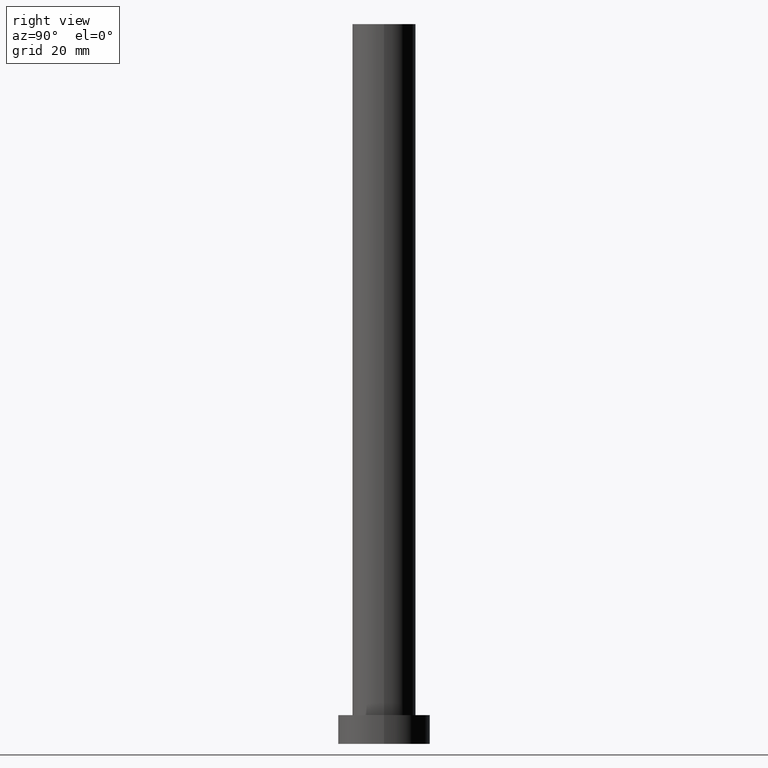
[diagram: clean part render]
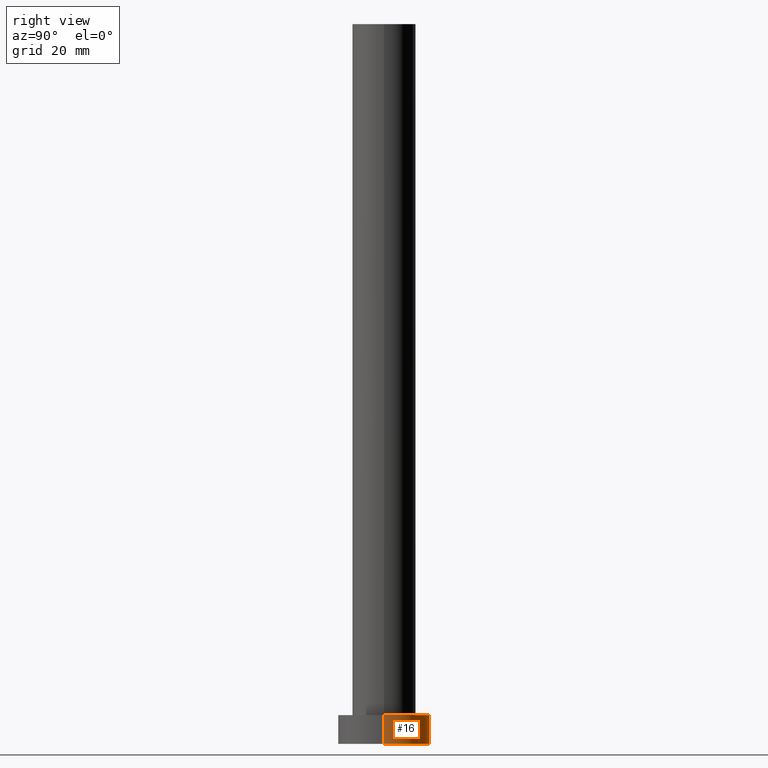
[diagram: same view with one face highlighted and labeled with its STEP entity id]
A machine part, right view. The second image highlights one B-rep face of the part: STEP entity #16.
In plain terms, the highlighted cylindrical surface (partial cylindrical patch) has radius 8 mm, axis along (-0, -0, -1).
Its self-contained STEP definition (entity closure, byte-faithful):
#3 = EDGE_CURVE ( 'NONE', #204, #247, #64, .T. ) ;
#9 = CIRCLE ( 'NONE', #55, 8.000000000000000000 ) ;
#12 = CARTESIAN_POINT ( 'NONE',  ( -8.000000000000000000, 0.000000000000000000, 0.000000000000000000 ) ) ;
#13 = VERTEX_POINT ( 'NONE', #12 ) ;
#16 = ADVANCED_FACE ( 'NONE', ( #91 ), #52, .T. ) ;
#19 = EDGE_LOOP ( 'NONE', ( #187, #206, #189, #107 ) ) ;
#32 = CARTESIAN_POINT ( 'NONE',  ( 0.000000000000000000, 0.000000000000000000, 5.000000000000000000 ) ) ;
#42 = CARTESIAN_POINT ( 'NONE',  ( 8.000000000000000000, 9.797174393178825657E-16, 5.000000000000000000 ) ) ;
#48 = CARTESIAN_POINT ( 'NONE',  ( -8.000000000000000000, 0.000000000000000000, 5.000000000000000000 ) ) ;
#51 = DIRECTION ( 'NONE',  ( -0.000000000000000000, -0.000000000000000000, -1.000000000000000000 ) ) ;
#52 = CYLINDRICAL_SURFACE ( 'NONE', #168, 8.000000000000000000 ) ;
#55 = AXIS2_PLACEMENT_3D ( 'NONE', #130, #254, #69 ) ;
#64 = LINE ( 'NONE', #126, #210 ) ;
#65 = EDGE_CURVE ( 'NONE', #247, #13, #9, .T. ) ;
#68 = CARTESIAN_POINT ( 'NONE',  ( 0.000000000000000000, 0.000000000000000000, 5.000000000000000000 ) ) ;
#69 = DIRECTION ( 'NONE',  ( 1.000000000000000000, 0.000000000000000000, 0.000000000000000000 ) ) ;
#72 = CARTESIAN_POINT ( 'NONE',  ( 8.000000000000000000, 9.797174393178825657E-16, 0.000000000000000000 ) ) ;
#80 = EDGE_CURVE ( 'NONE', #204, #230, #203, .T. ) ;
#91 = FACE_OUTER_BOUND ( 'NONE', #19, .T. ) ;
#107 = ORIENTED_EDGE ( 'NONE', *, *, #224, .F. ) ;
#113 = DIRECTION ( 'NONE',  ( -1.000000000000000000, 0.000000000000000000, 0.000000000000000000 ) ) ;
#124 = AXIS2_PLACEMENT_3D ( 'NONE', #32, #150, #212 ) ;
#126 = CARTESIAN_POINT ( 'NONE',  ( 8.000000000000000000, 9.797174393178825657E-16, 5.000000000000000000 ) ) ;
#130 = CARTESIAN_POINT ( 'NONE',  ( 0.000000000000000000, 0.000000000000000000, 0.000000000000000000 ) ) ;
#150 = DIRECTION ( 'NONE',  ( 0.000000000000000000, 0.000000000000000000, 1.000000000000000000 ) ) ;
#166 = DIRECTION ( 'NONE',  ( -0.000000000000000000, -0.000000000000000000, -1.000000000000000000 ) ) ;
#168 = AXIS2_PLACEMENT_3D ( 'NONE', #68, #51, #113 ) ;
#184 = VECTOR ( 'NONE', #166, 1000.000000000000000 ) ;
#186 = CARTESIAN_POINT ( 'NONE',  ( -8.000000000000000000, 0.000000000000000000, 5.000000000000000000 ) ) ;
#187 = ORIENTED_EDGE ( 'NONE', *, *, #80, .F. ) ;
#189 = ORIENTED_EDGE ( 'NONE', *, *, #65, .T. ) ;
#203 = CIRCLE ( 'NONE', #124, 8.000000000000000000 ) ;
#204 = VERTEX_POINT ( 'NONE', #42 ) ;
#206 = ORIENTED_EDGE ( 'NONE', *, *, #3, .T. ) ;
#208 = DIRECTION ( 'NONE',  ( -0.000000000000000000, -0.000000000000000000, -1.000000000000000000 ) ) ;
#210 = VECTOR ( 'NONE', #208, 1000.000000000000000 ) ;
#212 = DIRECTION ( 'NONE',  ( 1.000000000000000000, 0.000000000000000000, 0.000000000000000000 ) ) ;
#224 = EDGE_CURVE ( 'NONE', #230, #13, #249, .T. ) ;
#230 = VERTEX_POINT ( 'NONE', #48 ) ;
#247 = VERTEX_POINT ( 'NONE', #72 ) ;
#249 = LINE ( 'NONE', #186, #184 ) ;
#254 = DIRECTION ( 'NONE',  ( 0.000000000000000000, 0.000000000000000000, 1.000000000000000000 ) ) ;